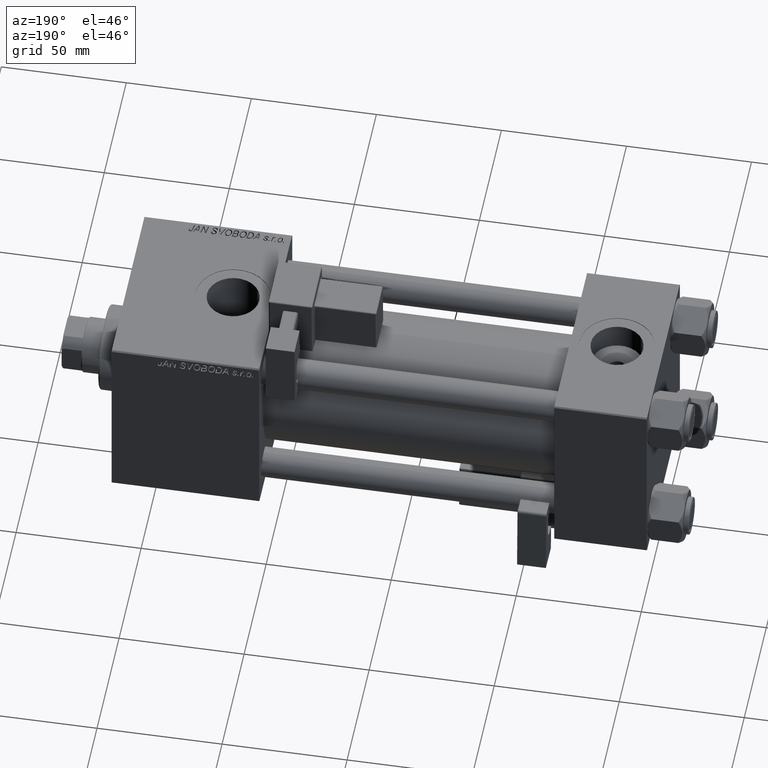
[diagram: clean part render]
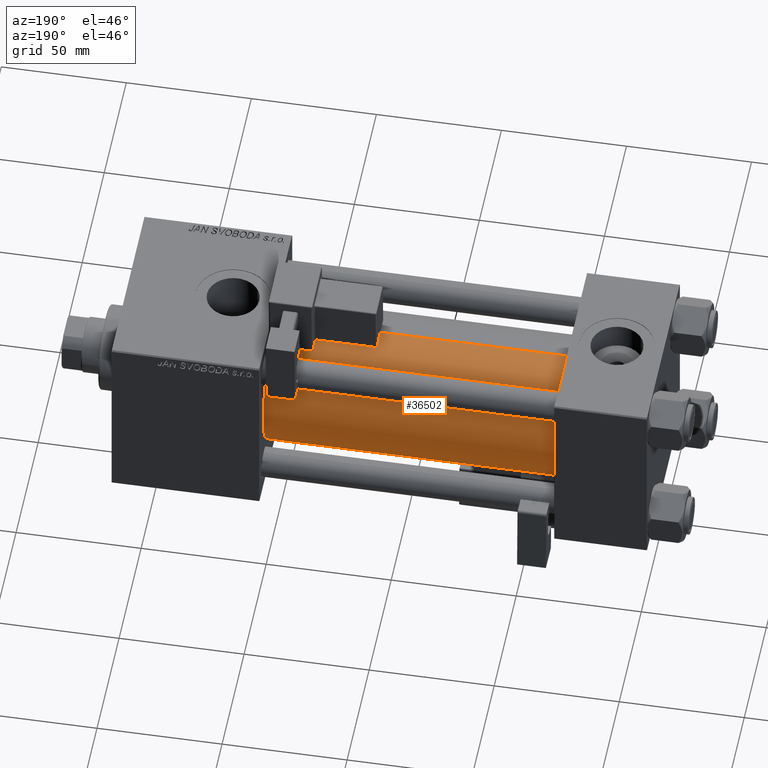
[diagram: same view with one face highlighted and labeled with its STEP entity id]
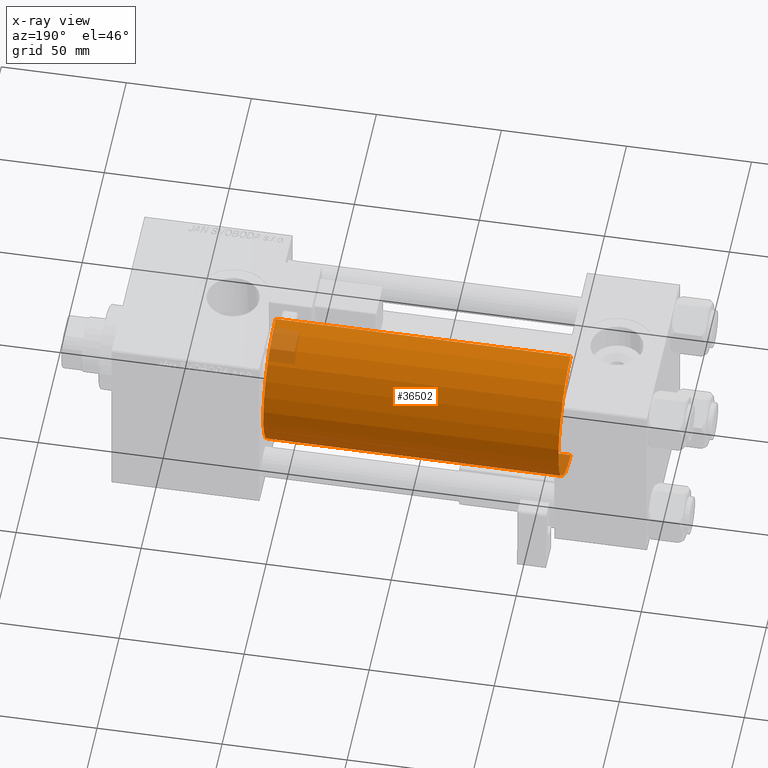
[diagram: x-ray of the same camera — body ghosted, the highlighted face saturated]
A machine part, auxiliary view. The second image highlights one B-rep face of the part: STEP entity #36502.
The next image is the same camera in x-ray: the body ghosted, the highlighted face saturated — about 3% of this face is hidden behind the body in this view.
In plain terms, the highlighted cylindrical surface (partial cylindrical patch) has radius 28 mm, axis along (-1, -0, -0).
Its self-contained STEP definition (entity closure, byte-faithful):
#763 = EDGE_CURVE ( 'NONE', #2493, #32754, #22599, .T. ) ;
#2493 = VERTEX_POINT ( 'NONE', #46503 ) ;
#4886 = VERTEX_POINT ( 'NONE', #11542 ) ;
#7750 = FACE_OUTER_BOUND ( 'NONE', #50508, .T. ) ;
#9765 = CIRCLE ( 'NONE', #13138, 28.00000000000000000 ) ;
#11452 = EDGE_CURVE ( 'NONE', #32754, #11559, #33464, .T. ) ;
#11542 = CARTESIAN_POINT ( 'NONE',  ( 37.00000000000000711, 8.269258236473784371E-16, -28.00000000000000000 ) ) ;
#11559 = VERTEX_POINT ( 'NONE', #14339 ) ;
#13138 = AXIS2_PLACEMENT_3D ( 'NONE', #17461, #33917, #42165 ) ;
#13631 = ORIENTED_EDGE ( 'NONE', *, *, #49929, .T. ) ;
#14339 = CARTESIAN_POINT ( 'NONE',  ( 37.00000000000000711, -2.602085213965210642E-15, 28.00000000000000000 ) ) ;
#16256 = CARTESIAN_POINT ( 'NONE',  ( 155.0000000000000000, -2.602085213965210642E-15, 0.000000000000000000 ) ) ;
#16826 = DIRECTION ( 'NONE',  ( -1.000000000000000000, -0.000000000000000000, -0.000000000000000000 ) ) ;
#17461 = CARTESIAN_POINT ( 'NONE',  ( 37.00000000000000711, -2.602085213965210642E-15, 0.000000000000000000 ) ) ;
#18527 = CARTESIAN_POINT ( 'NONE',  ( 155.0000000000000000, -2.602085213965210642E-15, 28.00000000000000000 ) ) ;
#19701 = DIRECTION ( 'NONE',  ( -1.000000000000000000, -0.000000000000000000, -0.000000000000000000 ) ) ;
#20848 = EDGE_CURVE ( 'NONE', #2493, #4886, #36222, .T. ) ;
#21291 = DIRECTION ( 'NONE',  ( 0.000000000000000000, 0.000000000000000000, -1.000000000000000000 ) ) ;
#22599 = CIRCLE ( 'NONE', #25148, 28.00000000000000000 ) ;
#23684 = CYLINDRICAL_SURFACE ( 'NONE', #49719, 28.00000000000000000 ) ;
#25148 = AXIS2_PLACEMENT_3D ( 'NONE', #16256, #49461, #21291 ) ;
#30857 = VECTOR ( 'NONE', #16826, 1000.000000000000000 ) ;
#31367 = VECTOR ( 'NONE', #33993, 1000.000000000000000 ) ;
#32754 = VERTEX_POINT ( 'NONE', #18527 ) ;
#33464 = LINE ( 'NONE', #37461, #31367 ) ;
#33917 = DIRECTION ( 'NONE',  ( 1.000000000000000000, -0.000000000000000000, 0.000000000000000000 ) ) ;
#33993 = DIRECTION ( 'NONE',  ( -1.000000000000000000, -0.000000000000000000, -0.000000000000000000 ) ) ;
#36040 = ORIENTED_EDGE ( 'NONE', *, *, #20848, .T. ) ;
#36222 = LINE ( 'NONE', #40211, #30857 ) ;
#36502 = ADVANCED_FACE ( 'NONE', ( #7750 ), #23684, .T. ) ;
#37461 = CARTESIAN_POINT ( 'NONE',  ( 155.0000000000000000, -2.602085213965210642E-15, 28.00000000000000000 ) ) ;
#39899 = CARTESIAN_POINT ( 'NONE',  ( 155.0000000000000000, -2.602085213965210642E-15, 0.000000000000000000 ) ) ;
#40211 = CARTESIAN_POINT ( 'NONE',  ( 155.0000000000000000, 8.269258236473784371E-16, -28.00000000000000000 ) ) ;
#42165 = DIRECTION ( 'NONE',  ( 0.000000000000000000, 0.000000000000000000, 1.000000000000000000 ) ) ;
#45883 = ORIENTED_EDGE ( 'NONE', *, *, #11452, .F. ) ;
#46503 = CARTESIAN_POINT ( 'NONE',  ( 155.0000000000000000, 8.269258236473784371E-16, -28.00000000000000000 ) ) ;
#49461 = DIRECTION ( 'NONE',  ( 1.000000000000000000, 0.000000000000000000, 0.000000000000000000 ) ) ;
#49719 = AXIS2_PLACEMENT_3D ( 'NONE', #39899, #19701, #52118 ) ;
#49929 = EDGE_CURVE ( 'NONE', #4886, #11559, #9765, .T. ) ;
#50508 = EDGE_LOOP ( 'NONE', ( #51833, #36040, #13631, #45883 ) ) ;
#51833 = ORIENTED_EDGE ( 'NONE', *, *, #763, .F. ) ;
#52118 = DIRECTION ( 'NONE',  ( 0.000000000000000000, 0.000000000000000000, 1.000000000000000000 ) ) ;